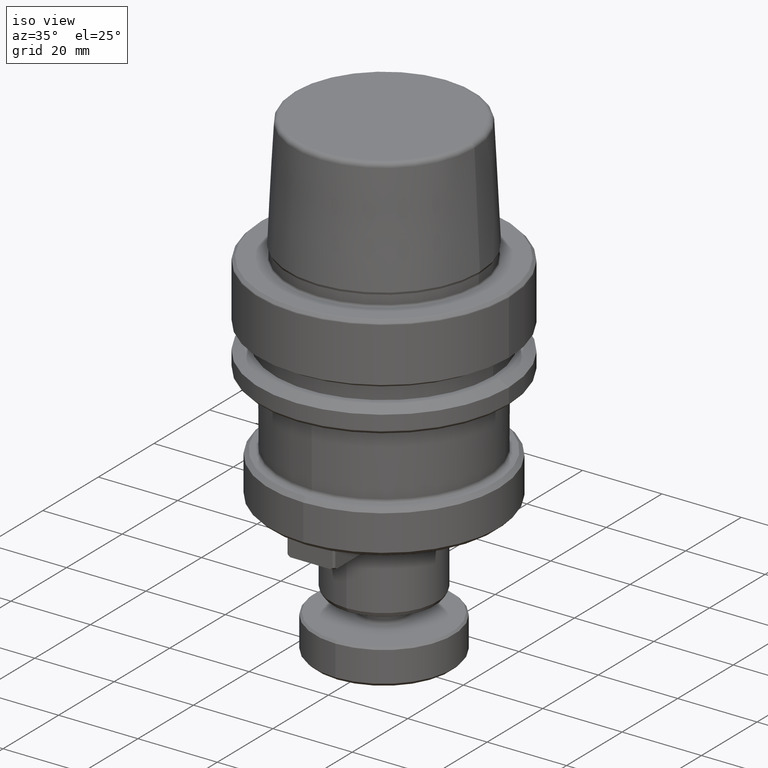
[diagram: clean part render]
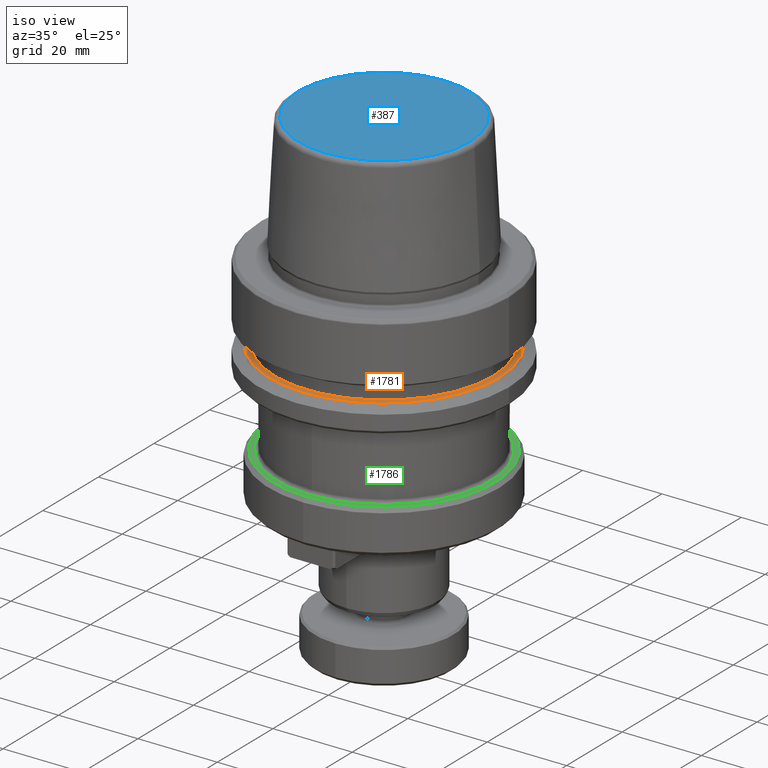
[diagram: same view with three faces highlighted in distinct colors, each labeled with its STEP entity id]
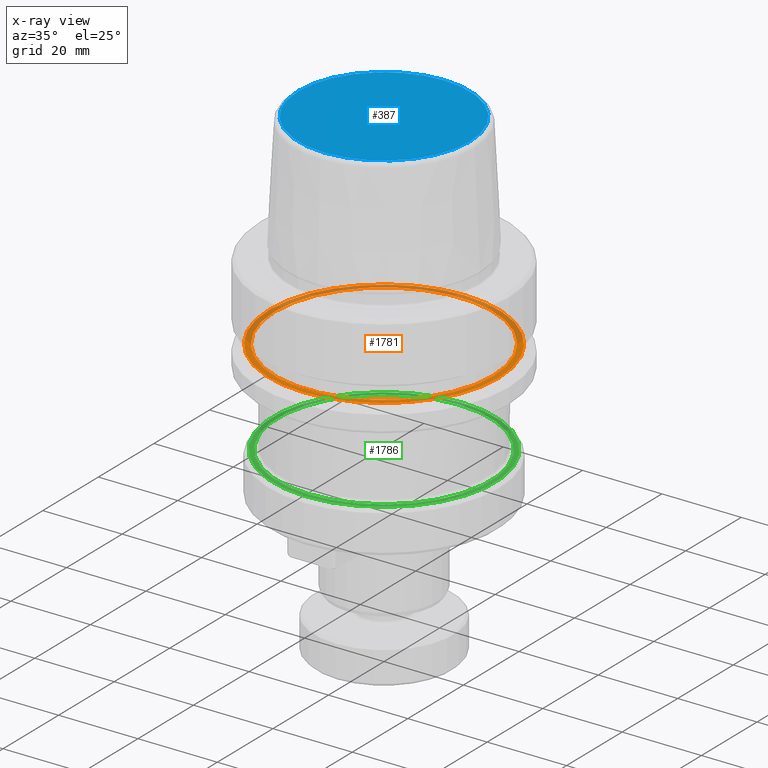
[diagram: x-ray of the same camera — body ghosted, the three highlighted faces saturated]
A machine part, iso view with three faces highlighted in distinct colors.
The next image is the same camera in x-ray (body ghosted, the three faces saturated) — at least one of them is partly hidden behind the body in this view.
Their STEP definitions:

[orange] entity #1781 — the highlighted planar face has unit normal (0, 0, -1).
#58 = DIRECTION ( 'NONE',  ( 0.0000000000000000000, 0.0000000000000000000, -1.000000000000000000 ) ) ;
#66 = AXIS2_PLACEMENT_3D ( 'NONE', #930, #1146, #911 ) ;
#525 = FACE_OUTER_BOUND ( 'NONE', #2489, .T. ) ;
#527 = ORIENTED_EDGE ( 'NONE', *, *, #644, .F. ) ;
#567 = CIRCLE ( 'NONE', #1679, 27.49999999999999600 ) ;
#639 = CARTESIAN_POINT ( 'NONE',  ( 28.94089653438085100, 3.700937523921292900E-015, -19.90000000000001600 ) ) ;
#644 = EDGE_CURVE ( 'NONE', #1496, #2909, #567, .T. ) ;
#705 = EDGE_CURVE ( 'NONE', #1902, #1293, #2292, .T. ) ;
#731 = CARTESIAN_POINT ( 'NONE',  ( 27.49999999999999600, 0.0000000000000000000, -19.90000000000001600 ) ) ;
#751 = EDGE_CURVE ( 'NONE', #2909, #1496, #968, .T. ) ;
#889 = DIRECTION ( 'NONE',  ( -0.0000000000000000000, -0.0000000000000000000, 1.000000000000000000 ) ) ;
#911 = DIRECTION ( 'NONE',  ( 1.000000000000000000, 0.0000000000000000000, 0.0000000000000000000 ) ) ;
#930 = CARTESIAN_POINT ( 'NONE',  ( 0.0000000000000000000, 0.0000000000000000000, -19.90000000000001600 ) ) ;
#968 = CIRCLE ( 'NONE', #66, 27.49999999999999600 ) ;
#1141 = FACE_BOUND ( 'NONE', #2164, .T. ) ;
#1146 = DIRECTION ( 'NONE',  ( -0.0000000000000000000, -0.0000000000000000000, 1.000000000000000000 ) ) ;
#1239 = CARTESIAN_POINT ( 'NONE',  ( 0.0000000000000000000, 0.0000000000000000000, -19.90000000000001600 ) ) ;
#1293 = VERTEX_POINT ( 'NONE', #639 ) ;
#1377 = DIRECTION ( 'NONE',  ( -0.0000000000000000000, -0.0000000000000000000, 1.000000000000000000 ) ) ;
#1445 = PLANE ( 'NONE',  #2334 ) ;
#1474 = DIRECTION ( 'NONE',  ( 1.000000000000000000, 0.0000000000000000000, 0.0000000000000000000 ) ) ;
#1496 = VERTEX_POINT ( 'NONE', #2330 ) ;
#1679 = AXIS2_PLACEMENT_3D ( 'NONE', #2762, #1377, #2550 ) ;
#1682 = DIRECTION ( 'NONE',  ( -1.000000000000000000, 0.0000000000000000000, -0.0000000000000000000 ) ) ;
#1781 = ADVANCED_FACE ( 'NONE', ( #1141, #525 ), #1445, .F. ) ;
#1902 = VERTEX_POINT ( 'NONE', #2440 ) ;
#2086 = AXIS2_PLACEMENT_3D ( 'NONE', #1239, #2858, #1474 ) ;
#2164 = EDGE_LOOP ( 'NONE', ( #2583, #527 ) ) ;
#2292 = CIRCLE ( 'NONE', #2765, 28.94089653438085100 ) ;
#2323 = ORIENTED_EDGE ( 'NONE', *, *, #2992, .T. ) ;
#2330 = CARTESIAN_POINT ( 'NONE',  ( -27.49999999999999600, 3.367778697655220900E-015, -19.90000000000001600 ) ) ;
#2332 = CARTESIAN_POINT ( 'NONE',  ( 0.0000000000000000000, 0.0000000000000000000, -19.90000000000001600 ) ) ;
#2334 = AXIS2_PLACEMENT_3D ( 'NONE', #2829, #58, #1682 ) ;
#2415 = ORIENTED_EDGE ( 'NONE', *, *, #705, .T. ) ;
#2440 = CARTESIAN_POINT ( 'NONE',  ( -28.94089653438085100, 0.0000000000000000000, -19.90000000000001600 ) ) ;
#2489 = EDGE_LOOP ( 'NONE', ( #2415, #2323 ) ) ;
#2547 = DIRECTION ( 'NONE',  ( 1.000000000000000000, 0.0000000000000000000, 0.0000000000000000000 ) ) ;
#2550 = DIRECTION ( 'NONE',  ( 1.000000000000000000, 0.0000000000000000000, 0.0000000000000000000 ) ) ;
#2583 = ORIENTED_EDGE ( 'NONE', *, *, #751, .F. ) ;
#2762 = CARTESIAN_POINT ( 'NONE',  ( 0.0000000000000000000, 0.0000000000000000000, -19.90000000000001600 ) ) ;
#2765 = AXIS2_PLACEMENT_3D ( 'NONE', #2332, #889, #2547 ) ;
#2829 = CARTESIAN_POINT ( 'NONE',  ( 0.0000000000000000000, 27.49999999999999600, -19.90000000000000900 ) ) ;
#2839 = CIRCLE ( 'NONE', #2086, 28.94089653438085100 ) ;
#2858 = DIRECTION ( 'NONE',  ( -0.0000000000000000000, -0.0000000000000000000, 1.000000000000000000 ) ) ;
#2909 = VERTEX_POINT ( 'NONE', #731 ) ;
#2992 = EDGE_CURVE ( 'NONE', #1293, #1902, #2839, .T. ) ;

[blue] entity #387 — the highlighted planar face has unit normal (0, 0, -1).
#70 = PLANE ( 'NONE',  #1421 ) ;
#284 = ORIENTED_EDGE ( 'NONE', *, *, #1819, .T. ) ;
#387 = ADVANCED_FACE ( 'NONE', ( #984 ), #70, .F. ) ;
#401 = EDGE_LOOP ( 'NONE', ( #2995, #284 ) ) ;
#439 = CARTESIAN_POINT ( 'NONE',  ( 0.0000000000000000000, 0.0000000000000000000, 31.89999999999999900 ) ) ;
#558 = CARTESIAN_POINT ( 'NONE',  ( -21.58108272732117100, 2.716307157494421400E-015, 31.89999999999999900 ) ) ;
#677 = DIRECTION ( 'NONE',  ( 1.000000000000000000, 0.0000000000000000000, 0.0000000000000000000 ) ) ;
#753 = DIRECTION ( 'NONE',  ( 0.0000000000000000000, 0.0000000000000000000, -1.000000000000000000 ) ) ;
#984 = FACE_OUTER_BOUND ( 'NONE', #401, .T. ) ;
#1007 = CARTESIAN_POINT ( 'NONE',  ( 0.0000000000000000000, 0.0000000000000000000, 31.89999999999999900 ) ) ;
#1245 = DIRECTION ( 'NONE',  ( 1.000000000000000000, 0.0000000000000000000, 0.0000000000000000000 ) ) ;
#1399 = EDGE_CURVE ( 'NONE', #1842, #1866, #1473, .T. ) ;
#1421 = AXIS2_PLACEMENT_3D ( 'NONE', #1684, #753, #2396 ) ;
#1473 = CIRCLE ( 'NONE', #1606, 21.58108272732117100 ) ;
#1606 = AXIS2_PLACEMENT_3D ( 'NONE', #439, #2075, #677 ) ;
#1684 = CARTESIAN_POINT ( 'NONE',  ( 0.0000000000000000000, 0.0000000000000000000, 31.89999999999999900 ) ) ;
#1690 = CIRCLE ( 'NONE', #2788, 21.58108272732117100 ) ;
#1728 = CARTESIAN_POINT ( 'NONE',  ( 21.58108272732117100, 0.0000000000000000000, 31.89999999999999900 ) ) ;
#1819 = EDGE_CURVE ( 'NONE', #1866, #1842, #1690, .T. ) ;
#1842 = VERTEX_POINT ( 'NONE', #1728 ) ;
#1866 = VERTEX_POINT ( 'NONE', #558 ) ;
#2075 = DIRECTION ( 'NONE',  ( -0.0000000000000000000, -0.0000000000000000000, 1.000000000000000000 ) ) ;
#2396 = DIRECTION ( 'NONE',  ( -1.000000000000000000, 0.0000000000000000000, -0.0000000000000000000 ) ) ;
#2647 = DIRECTION ( 'NONE',  ( -0.0000000000000000000, -0.0000000000000000000, 1.000000000000000000 ) ) ;
#2788 = AXIS2_PLACEMENT_3D ( 'NONE', #1007, #2647, #1245 ) ;
#2995 = ORIENTED_EDGE ( 'NONE', *, *, #1399, .T. ) ;

[green] entity #1786 — the highlighted planar face has unit normal (0, -0, 1).
#143 = VERTEX_POINT ( 'NONE', #2024 ) ;
#197 = CIRCLE ( 'NONE', #1171, 26.79999999999999700 ) ;
#207 = EDGE_LOOP ( 'NONE', ( #2257, #2810 ) ) ;
#234 = EDGE_CURVE ( 'NONE', #143, #2791, #197, .T. ) ;
#414 = DIRECTION ( 'NONE',  ( -0.0000000000000000000, 4.898587196589402800E-018, -1.000000000000000000 ) ) ;
#447 = FACE_BOUND ( 'NONE', #207, .T. ) ;
#486 = DIRECTION ( 'NONE',  ( -0.0000000000000000000, 4.898587196589402800E-018, -1.000000000000000000 ) ) ;
#522 = PLANE ( 'NONE',  #2646 ) ;
#752 = DIRECTION ( 'NONE',  ( 0.0000000000000000000, -4.898587196589402800E-018, 1.000000000000000000 ) ) ;
#807 = CIRCLE ( 'NONE', #1235, 26.79999999999999700 ) ;
#881 = CARTESIAN_POINT ( 'NONE',  ( 3.490243377569956500E-015, -28.00000000000000000, -44.00000000000001400 ) ) ;
#935 = CARTESIAN_POINT ( 'NONE',  ( 0.0000000000000000000, 8.817456953860927300E-017, -44.00000000000001400 ) ) ;
#1036 = VERTEX_POINT ( 'NONE', #881 ) ;
#1170 = DIRECTION ( 'NONE',  ( 0.0000000000000000000, 1.000000000000000000, 0.0000000000000000000 ) ) ;
#1171 = AXIS2_PLACEMENT_3D ( 'NONE', #2570, #1412, #2779 ) ;
#1210 = CARTESIAN_POINT ( 'NONE',  ( 0.0000000000000000000, 28.00000000000000000, -44.00000000000001400 ) ) ;
#1219 = ORIENTED_EDGE ( 'NONE', *, *, #2828, .F. ) ;
#1235 = AXIS2_PLACEMENT_3D ( 'NONE', #1886, #486, #2121 ) ;
#1412 = DIRECTION ( 'NONE',  ( -0.0000000000000000000, 4.898587196589402800E-018, -1.000000000000000000 ) ) ;
#1415 = CIRCLE ( 'NONE', #2920, 28.00000000000000000 ) ;
#1517 = CIRCLE ( 'NONE', #2718, 28.00000000000000000 ) ;
#1696 = EDGE_CURVE ( 'NONE', #2791, #143, #807, .T. ) ;
#1786 = ADVANCED_FACE ( 'NONE', ( #447, #2910 ), #522, .T. ) ;
#1812 = CARTESIAN_POINT ( 'NONE',  ( 0.0000000000000000000, 8.817456953860927300E-017, -44.00000000000001400 ) ) ;
#1886 = CARTESIAN_POINT ( 'NONE',  ( 0.0000000000000000000, 8.817456953860927300E-017, -44.00000000000001400 ) ) ;
#2024 = CARTESIAN_POINT ( 'NONE',  ( 3.282053421714906200E-015, -26.79999999999999700, -44.00000000000001400 ) ) ;
#2041 = EDGE_LOOP ( 'NONE', ( #1219, #2253 ) ) ;
#2042 = DIRECTION ( 'NONE',  ( 0.0000000000000000000, 1.000000000000000000, 0.0000000000000000000 ) ) ;
#2099 = VERTEX_POINT ( 'NONE', #2262 ) ;
#2121 = DIRECTION ( 'NONE',  ( 0.0000000000000000000, 1.000000000000000000, 0.0000000000000000000 ) ) ;
#2253 = ORIENTED_EDGE ( 'NONE', *, *, #2591, .F. ) ;
#2257 = ORIENTED_EDGE ( 'NONE', *, *, #1696, .T. ) ;
#2262 = CARTESIAN_POINT ( 'NONE',  ( 0.0000000000000000000, 28.00000000000000000, -44.00000000000001400 ) ) ;
#2314 = CARTESIAN_POINT ( 'NONE',  ( 0.0000000000000000000, 26.79999999999999700, -44.00000000000001400 ) ) ;
#2395 = DIRECTION ( 'NONE',  ( 0.0000000000000000000, -1.000000000000000000, -4.898587196589402800E-018 ) ) ;
#2570 = CARTESIAN_POINT ( 'NONE',  ( 0.0000000000000000000, 8.817456953860927300E-017, -44.00000000000001400 ) ) ;
#2576 = DIRECTION ( 'NONE',  ( -0.0000000000000000000, 4.898587196589402800E-018, -1.000000000000000000 ) ) ;
#2591 = EDGE_CURVE ( 'NONE', #1036, #2099, #1415, .T. ) ;
#2646 = AXIS2_PLACEMENT_3D ( 'NONE', #1210, #752, #2395 ) ;
#2718 = AXIS2_PLACEMENT_3D ( 'NONE', #935, #2576, #1170 ) ;
#2779 = DIRECTION ( 'NONE',  ( 0.0000000000000000000, 1.000000000000000000, 0.0000000000000000000 ) ) ;
#2791 = VERTEX_POINT ( 'NONE', #2314 ) ;
#2810 = ORIENTED_EDGE ( 'NONE', *, *, #234, .T. ) ;
#2828 = EDGE_CURVE ( 'NONE', #2099, #1036, #1517, .T. ) ;
#2910 = FACE_OUTER_BOUND ( 'NONE', #2041, .T. ) ;
#2920 = AXIS2_PLACEMENT_3D ( 'NONE', #1812, #414, #2042 ) ;